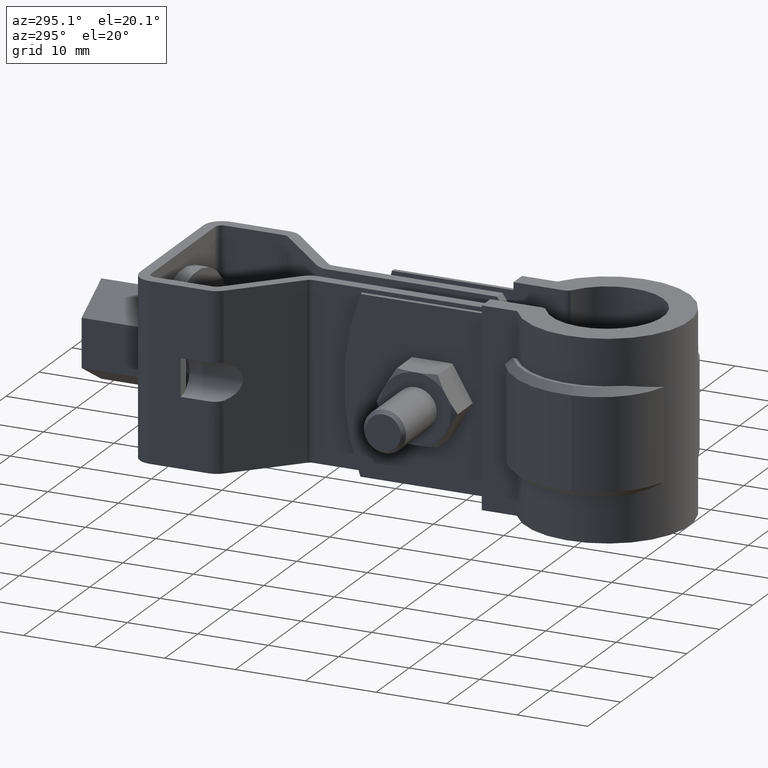
[diagram: clean part render]
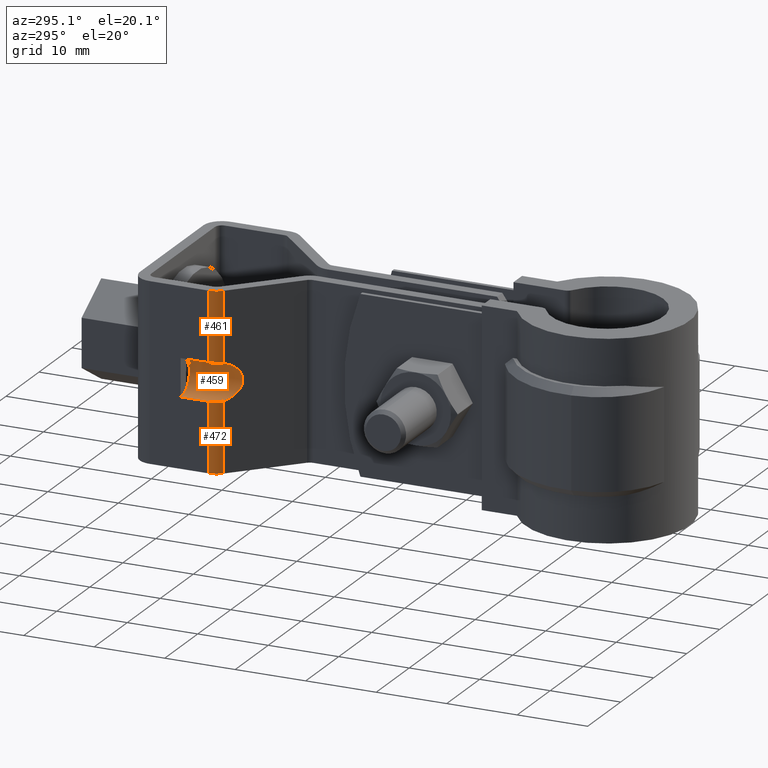
[diagram: same view with one multi-face feature highlighted, each face labeled with its STEP entity id]
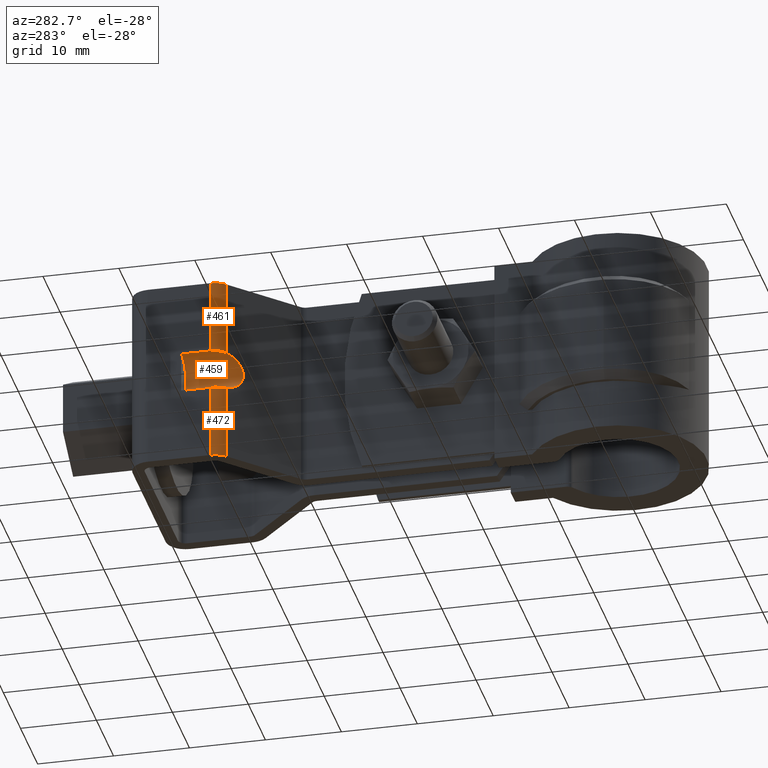
[diagram: same view with one multi-face feature highlighted, each face labeled with its STEP entity id]
A machine part, auxiliary view. The highlighted faces form ONE feature: a constant-radius fillet chain: 3 tangent blend faces with common blend radius 2.61667 mm. The faces share edges in the B-rep.
A second angle (auxiliary view) of the same feature is appended — it is thin or edge-on in the first view.
Their STEP definitions:
[1] entity #472 (Cylinder):
#472 = ADVANCED_FACE( '', ( #855 ), #856, .T. );
#855 = FACE_OUTER_BOUND( '', #1881, .T. );
#856 = CYLINDRICAL_SURFACE( '', #1882, 2.59999999999999 );
#1881 = EDGE_LOOP( '', ( #4310, #4311, #4312, #4313 ) );
#1882 = AXIS2_PLACEMENT_3D( '', #4314, #4315, #4316 );
#4310 = ORIENTED_EDGE( '', *, *, #5177, .F. );
#4311 = ORIENTED_EDGE( '', *, *, #5149, .F. );
#4312 = ORIENTED_EDGE( '', *, *, #5176, .T. );
#4313 = ORIENTED_EDGE( '', *, *, #5169, .F. );
#4314 = CARTESIAN_POINT( '', ( -9.65000000000235, 50.8912819000984, -6.75043354547711E-010 ) );
#4315 = DIRECTION( '', ( -2.12762802152738E-013, 5.16559017782481E-012, 1.00000000000000 ) );
#4316 = DIRECTION( '', ( -1.50571936274857E-013, 1.00000000000000, -5.16559017782484E-012 ) );
#5149 = EDGE_CURVE( '', #6044, #6034, #6046, .T. );
#5169 = EDGE_CURVE( '', #6071, #6073, #6074, .T. );
#5176 = EDGE_CURVE( '', #6044, #6073, #6084, .T. );
#5177 = EDGE_CURVE( '', #6034, #6071, #6085, .T. );
#6034 = VERTEX_POINT( '', #8581 );
#6044 = VERTEX_POINT( '', #8599 );
#6046 = B_SPLINE_CURVE_WITH_KNOTS( '', 3, ( #8602, #8603, #8604, #8605, #8606, #8607, #8608, #8609, #8610, #8611 ), .UNSPECIFIED., .F., .F., ( 4, 2, 2, 2, 4 ), ( 0.000000000000000, 0.000517346174284565, 0.00103469234856913, 0.00155203852285370, 0.00206938469713826 ), .UNSPECIFIED. );
#6071 = VERTEX_POINT( '', #8650 );
#6073 = VERTEX_POINT( '', #8653 );
#6074 = CIRCLE( '', #8654, 2.59999999999999 );
#6084 = LINE( '', #8667, #8668 );
#6085 = LINE( '', #8669, #8670 );
#8581 = CARTESIAN_POINT( '', ( -11.4656419723782, 49.0302487922723, -15.0312610469640 ) );
#8599 = CARTESIAN_POINT( '', ( -12.2499999999991, 50.8912819000196, -15.1500000006756 ) );
#8602 = CARTESIAN_POINT( '', ( -12.2499999999991, 50.8912819000196, -15.1500000006756 ) );
#8603 = CARTESIAN_POINT( '', ( -12.2499999999991, 50.7163918357714, -15.1500000006746 ) );
#8604 = CARTESIAN_POINT( '', ( -12.2325330354073, 50.5444494278659, -15.1501636966785 ) );
#8605 = CARTESIAN_POINT( '', ( -12.1640563524465, 50.2062342378577, -15.1488273638497 ) );
#8606 = CARTESIAN_POINT( '', ( -12.1121297117020, 50.0381033895758, -15.1472759535358 ) );
#8607 = CARTESIAN_POINT( '', ( -11.9772119360838, 49.7190699343420, -15.1367906368778 ) );
#8608 = CARTESIAN_POINT( '', ( -11.8947254704599, 49.5680587149907, -15.1279277841514 ) );
#8609 = CARTESIAN_POINT( '', ( -11.7003962036480, 49.2833057051725, -15.0942552104675 ) );
#8610 = CARTESIAN_POINT( '', ( -11.5880224298569, 49.1496443550229, -15.0691828940171 ) );
#8611 = CARTESIAN_POINT( '', ( -11.4656419723782, 49.0302487922723, -15.0312610469640 ) );
#8650 = CARTESIAN_POINT( '', ( -11.4656419723760, 49.0302487922208, -25.0000000006658 ) );
#8653 = CARTESIAN_POINT( '', ( -12.2499999999970, 50.8912818999688, -25.0000000006756 ) );
#8654 = AXIS2_PLACEMENT_3D( '', #9554, #9555, #9556 );
#8667 = CARTESIAN_POINT( '', ( -12.2500000000023, 50.8912819000980, -6.75584588272216E-010 ) );
#8668 = VECTOR( '', #9569, 1000.00000000000 );
#8669 = CARTESIAN_POINT( '', ( -11.4656419723814, 49.0302487923500, -6.65814625655514E-010 ) );
#8670 = VECTOR( '', #9570, 1000.00000000000 );
#9554 = CARTESIAN_POINT( '', ( -9.64999999999703, 50.8912818999692, -25.0000000006751 ) );
#9555 = DIRECTION( '', ( 2.12762802152738E-013, -5.16559017782481E-012, -1.00000000000000 ) );
#9556 = DIRECTION( '', ( -0.698323835530394, -0.715781964518609, 3.54885894932398E-012 ) );
#9569 = DIRECTION( '', ( 2.12762802152738E-013, -5.16559017782481E-012, -1.00000000000000 ) );
#9570 = DIRECTION( '', ( 2.12762802152738E-013, -5.16559017782481E-012, -1.00000000000000 ) );
[2] entity #459 (Cylinder):
#459 = ADVANCED_FACE( '', ( #826 ), #827, .F. );
#826 = FACE_OUTER_BOUND( '', #1852, .T. );
#827 = CYLINDRICAL_SURFACE( '', #1853, 2.64999999999997 );
#1852 = EDGE_LOOP( '', ( #4179, #4180, #4181, #4182, #4183, #4184, #4185, #4186 ) );
#1853 = AXIS2_PLACEMENT_3D( '', #4187, #4188, #4189 );
#4179 = ORIENTED_EDGE( '', *, *, #5143, .T. );
#4180 = ORIENTED_EDGE( '', *, *, #5144, .T. );
#4181 = ORIENTED_EDGE( '', *, *, #5145, .T. );
#4182 = ORIENTED_EDGE( '', *, *, #5146, .F. );
#4183 = ORIENTED_EDGE( '', *, *, #5141, .F. );
#4184 = ORIENTED_EDGE( '', *, *, #5147, .F. );
#4185 = ORIENTED_EDGE( '', *, *, #5148, .F. );
#4186 = ORIENTED_EDGE( '', *, *, #5149, .T. );
#4187 = CARTESIAN_POINT( '', ( -12.2499999999987, 44.7954761009190, -12.5000000006441 ) );
#4188 = DIRECTION( '', ( 1.50571936274857E-013, -1.00000000000000, 5.16559017782484E-012 ) );
#4189 = DIRECTION( '', ( -1.91706918336711E-013, 5.16559017782481E-012, 1.00000000000000 ) );
#5141 = EDGE_CURVE( '', #6029, #6031, #6032, .T. );
#5143 = EDGE_CURVE( '', #6034, #6035, #6036, .T. );
#5144 = EDGE_CURVE( '', #6035, #6037, #6038, .T. );
#5145 = EDGE_CURVE( '', #6037, #6039, #6040, .T. );
#5146 = EDGE_CURVE( '', #6031, #6039, #6041, .T. );
#5147 = EDGE_CURVE( '', #6042, #6029, #6043, .T. );
#5148 = EDGE_CURVE( '', #6044, #6042, #6045, .T. );
#5149 = EDGE_CURVE( '', #6044, #6034, #6046, .T. );
#6029 = VERTEX_POINT( '', #8574 );
#6031 = VERTEX_POINT( '', #8577 );
#6032 = CIRCLE( '', #8578, 2.64999999999997 );
#6034 = VERTEX_POINT( '', #8581 );
#6035 = VERTEX_POINT( '', #8582 );
#6036 = ELLIPSE( '', #8583, 3.70224472166266, 2.64999999999997 );
#6037 = VERTEX_POINT( '', #8584 );
#6038 = B_SPLINE_CURVE_WITH_KNOTS( '', 3, ( #8585, #8586, #8587, #8588, #8589, #8590, #8591, #8592 ), .UNSPECIFIED., .F., .F., ( 4, 2, 2, 4 ), ( 1.73472347597681E-018, 0.000516787748161305, 0.00103357549632261, 0.00206715099264520 ), .UNSPECIFIED. );
#6039 = VERTEX_POINT( '', #8593 );
#6040 = LINE( '', #8594, #8595 );
#6041 = CIRCLE( '', #8596, 2.64999999999997 );
#6042 = VERTEX_POINT( '', #8597 );
#6043 = CIRCLE( '', #8598, 2.64999999999997 );
#6044 = VERTEX_POINT( '', #8599 );
#6045 = LINE( '', #8600, #8601 );
#6046 = B_SPLINE_CURVE_WITH_KNOTS( '', 3, ( #8602, #8603, #8604, #8605, #8606, #8607, #8608, #8609, #8610, #8611 ), .UNSPECIFIED., .F., .F., ( 4, 2, 2, 2, 4 ), ( 0.000000000000000, 0.000517346174284565, 0.00103469234856913, 0.00155203852285370, 0.00206938469713826 ), .UNSPECIFIED. );
#8574 = CARTESIAN_POINT( '', ( -10.6499999999998, 54.7954761009083, -14.6124630181232 ) );
#8577 = CARTESIAN_POINT( '', ( -10.6500000000007, 54.7954761009301, -10.3875369832677 ) );
#8578 = AXIS2_PLACEMENT_3D( '', #9512, #9513, #9514 );
#8581 = CARTESIAN_POINT( '', ( -11.4656419723782, 49.0302487922723, -15.0312610469640 ) );
#8582 = CARTESIAN_POINT( '', ( -11.4656419723792, 49.0302487922984, -9.96873895436758 ) );
#8583 = AXIS2_PLACEMENT_3D( '', #9516, #9517, #9518 );
#8584 = CARTESIAN_POINT( '', ( -12.2500000000002, 50.8912819000470, -9.85000000067561 ) );
#8585 = CARTESIAN_POINT( '', ( -11.4656419723792, 49.0302487922984, -9.96873895436756 ) );
#8586 = CARTESIAN_POINT( '', ( -11.5880007594310, 49.1496232131703, -9.93082382229825 ) );
#8587 = CARTESIAN_POINT( '', ( -11.6979909725815, 49.2803221785398, -9.90626133085725 ) );
#8588 = CARTESIAN_POINT( '', ( -11.8919853000436, 49.5635167994052, -9.87244986256781 ) );
#8589 = CARTESIAN_POINT( '', ( -11.9765770457460, 49.7178419979383, -9.86327473278652 ) );
#8590 = CARTESIAN_POINT( '', ( -12.1789956025120, 50.1956749297784, -9.84749564132407 ) );
#8591 = CARTESIAN_POINT( '', ( -12.2500000000002, 50.5417400579998, -9.85000000067380 ) );
#8592 = CARTESIAN_POINT( '', ( -12.2500000000002, 50.8912819000470, -9.85000000067561 ) );
#8593 = CARTESIAN_POINT( '', ( -12.2500000000008, 54.7954761009327, -9.85000000069579 ) );
#8594 = CARTESIAN_POINT( '', ( -12.2499999999993, 44.7954761009327, -9.85000000064414 ) );
#8595 = VECTOR( '', #9519, 1000.00000000000 );
#8596 = AXIS2_PLACEMENT_3D( '', #9520, #9521, #9522 );
#8597 = CARTESIAN_POINT( '', ( -12.2499999999997, 54.7954761009053, -15.1500000006957 ) );
#8598 = AXIS2_PLACEMENT_3D( '', #9523, #9524, #9525 );
#8599 = CARTESIAN_POINT( '', ( -12.2499999999991, 50.8912819000196, -15.1500000006756 ) );
#8600 = CARTESIAN_POINT( '', ( -12.2499999999982, 44.7954761009053, -15.1500000006441 ) );
#8601 = VECTOR( '', #9526, 1000.00000000000 );
#8602 = CARTESIAN_POINT( '', ( -12.2499999999991, 50.8912819000196, -15.1500000006756 ) );
#8603 = CARTESIAN_POINT( '', ( -12.2499999999991, 50.7163918357714, -15.1500000006746 ) );
#8604 = CARTESIAN_POINT( '', ( -12.2325330354073, 50.5444494278659, -15.1501636966785 ) );
#8605 = CARTESIAN_POINT( '', ( -12.1640563524465, 50.2062342378577, -15.1488273638497 ) );
#8606 = CARTESIAN_POINT( '', ( -12.1121297117020, 50.0381033895758, -15.1472759535358 ) );
#8607 = CARTESIAN_POINT( '', ( -11.9772119360838, 49.7190699343420, -15.1367906368778 ) );
#8608 = CARTESIAN_POINT( '', ( -11.8947254704599, 49.5680587149907, -15.1279277841514 ) );
#8609 = CARTESIAN_POINT( '', ( -11.7003962036480, 49.2833057051725, -15.0942552104675 ) );
#8610 = CARTESIAN_POINT( '', ( -11.5880224298569, 49.1496443550229, -15.0691828940171 ) );
#8611 = CARTESIAN_POINT( '', ( -11.4656419723782, 49.0302487922723, -15.0312610469640 ) );
#9512 = CARTESIAN_POINT( '', ( -12.2500000000002, 54.7954761009190, -12.5000000006958 ) );
#9513 = DIRECTION( '', ( 1.50571936274857E-013, -1.00000000000000, 5.16559017782484E-012 ) );
#9514 = DIRECTION( '', ( -2.13309135207366E-013, 5.16559017782481E-012, 1.00000000000000 ) );
#9516 = CARTESIAN_POINT( '', ( -12.2499999999995, 49.7954761009192, -12.5000000006699 ) );
#9517 = DIRECTION( '', ( -0.698323835530391, -0.715781964518612, 3.54889405177176E-012 ) );
#9518 = DIRECTION( '', ( -0.715781964518612, 0.698323835530391, -3.75951054224748E-012 ) );
#9519 = DIRECTION( '', ( -1.50571936274857E-013, 1.00000000000000, -5.16559017782484E-012 ) );
#9520 = CARTESIAN_POINT( '', ( -12.2500000000002, 54.7954761009190, -12.5000000006958 ) );
#9521 = DIRECTION( '', ( 1.50571936274857E-013, -1.00000000000000, 5.16559017782484E-012 ) );
#9522 = DIRECTION( '', ( -2.13309135207366E-013, 5.16559017782481E-012, 1.00000000000000 ) );
#9523 = CARTESIAN_POINT( '', ( -12.2500000000002, 54.7954761009190, -12.5000000006958 ) );
#9524 = DIRECTION( '', ( 1.50571936274857E-013, -1.00000000000000, 5.16559017782484E-012 ) );
#9525 = DIRECTION( '', ( -2.13309135207366E-013, 5.16559017782481E-012, 1.00000000000000 ) );
#9526 = DIRECTION( '', ( -1.50571936274857E-013, 1.00000000000000, -5.16559017782484E-012 ) );
[3] entity #461 (Cylinder):
#461 = ADVANCED_FACE( '', ( #830 ), #831, .T. );
#830 = FACE_OUTER_BOUND( '', #1856, .T. );
#831 = CYLINDRICAL_SURFACE( '', #1857, 2.59999999999999 );
#1856 = EDGE_LOOP( '', ( #4197, #4198, #4199, #4200 ) );
#1857 = AXIS2_PLACEMENT_3D( '', #4201, #4202, #4203 );
#4197 = ORIENTED_EDGE( '', *, *, #5152, .T. );
#4198 = ORIENTED_EDGE( '', *, *, #5144, .F. );
#4199 = ORIENTED_EDGE( '', *, *, #5153, .F. );
#4200 = ORIENTED_EDGE( '', *, *, #5071, .T. );
#4201 = CARTESIAN_POINT( '', ( -9.65000000000235, 50.8912819000984, -6.75043354547711E-010 ) );
#4202 = DIRECTION( '', ( -2.12762802152738E-013, 5.16559017782481E-012, 1.00000000000000 ) );
#4203 = DIRECTION( '', ( -1.50571936274857E-013, 1.00000000000000, -5.16559017782484E-012 ) );
#5071 = EDGE_CURVE( '', #5914, #5912, #5915, .T. );
#5144 = EDGE_CURVE( '', #6035, #6037, #6038, .T. );
#5152 = EDGE_CURVE( '', #5912, #6037, #6049, .T. );
#5153 = EDGE_CURVE( '', #5914, #6035, #6050, .T. );
#5912 = VERTEX_POINT( '', #8380 );
#5914 = VERTEX_POINT( '', #8383 );
#5915 = CIRCLE( '', #8384, 2.59999999999999 );
#6035 = VERTEX_POINT( '', #8582 );
#6037 = VERTEX_POINT( '', #8584 );
#6038 = B_SPLINE_CURVE_WITH_KNOTS( '', 3, ( #8585, #8586, #8587, #8588, #8589, #8590, #8591, #8592 ), .UNSPECIFIED., .F., .F., ( 4, 2, 2, 4 ), ( 1.73472347597681E-018, 0.000516787748161305, 0.00103357549632261, 0.00206715099264520 ), .UNSPECIFIED. );
#6049 = LINE( '', #8616, #8617 );
#6050 = LINE( '', #8618, #8619 );
#8380 = CARTESIAN_POINT( '', ( -12.2500000000023, 50.8912819000980, -6.75584588272216E-010 ) );
#8383 = CARTESIAN_POINT( '', ( -11.4656419723814, 49.0302487923500, -6.65814625655514E-010 ) );
#8384 = AXIS2_PLACEMENT_3D( '', #9402, #9403, #9404 );
#8582 = CARTESIAN_POINT( '', ( -11.4656419723792, 49.0302487922984, -9.96873895436758 ) );
#8584 = CARTESIAN_POINT( '', ( -12.2500000000002, 50.8912819000470, -9.85000000067561 ) );
#8585 = CARTESIAN_POINT( '', ( -11.4656419723792, 49.0302487922984, -9.96873895436756 ) );
#8586 = CARTESIAN_POINT( '', ( -11.5880007594310, 49.1496232131703, -9.93082382229825 ) );
#8587 = CARTESIAN_POINT( '', ( -11.6979909725815, 49.2803221785398, -9.90626133085725 ) );
#8588 = CARTESIAN_POINT( '', ( -11.8919853000436, 49.5635167994052, -9.87244986256781 ) );
#8589 = CARTESIAN_POINT( '', ( -11.9765770457460, 49.7178419979383, -9.86327473278652 ) );
#8590 = CARTESIAN_POINT( '', ( -12.1789956025120, 50.1956749297784, -9.84749564132407 ) );
#8591 = CARTESIAN_POINT( '', ( -12.2500000000002, 50.5417400579998, -9.85000000067380 ) );
#8592 = CARTESIAN_POINT( '', ( -12.2500000000002, 50.8912819000470, -9.85000000067561 ) );
#8616 = CARTESIAN_POINT( '', ( -12.2500000000023, 50.8912819000980, -6.75584588272216E-010 ) );
#8617 = VECTOR( '', #9529, 1000.00000000000 );
#8618 = CARTESIAN_POINT( '', ( -11.4656419723814, 49.0302487923500, -6.65814625655514E-010 ) );
#8619 = VECTOR( '', #9530, 1000.00000000000 );
#9402 = CARTESIAN_POINT( '', ( -9.65000000000235, 50.8912819000984, -6.75043354547711E-010 ) );
#9403 = DIRECTION( '', ( 2.12762802152738E-013, -5.16559017782481E-012, -1.00000000000000 ) );
#9404 = DIRECTION( '', ( -0.698323835530394, -0.715781964518609, 3.54885894932398E-012 ) );
#9529 = DIRECTION( '', ( 2.12762802152738E-013, -5.16559017782481E-012, -1.00000000000000 ) );
#9530 = DIRECTION( '', ( 2.12762802152738E-013, -5.16559017782481E-012, -1.00000000000000 ) );